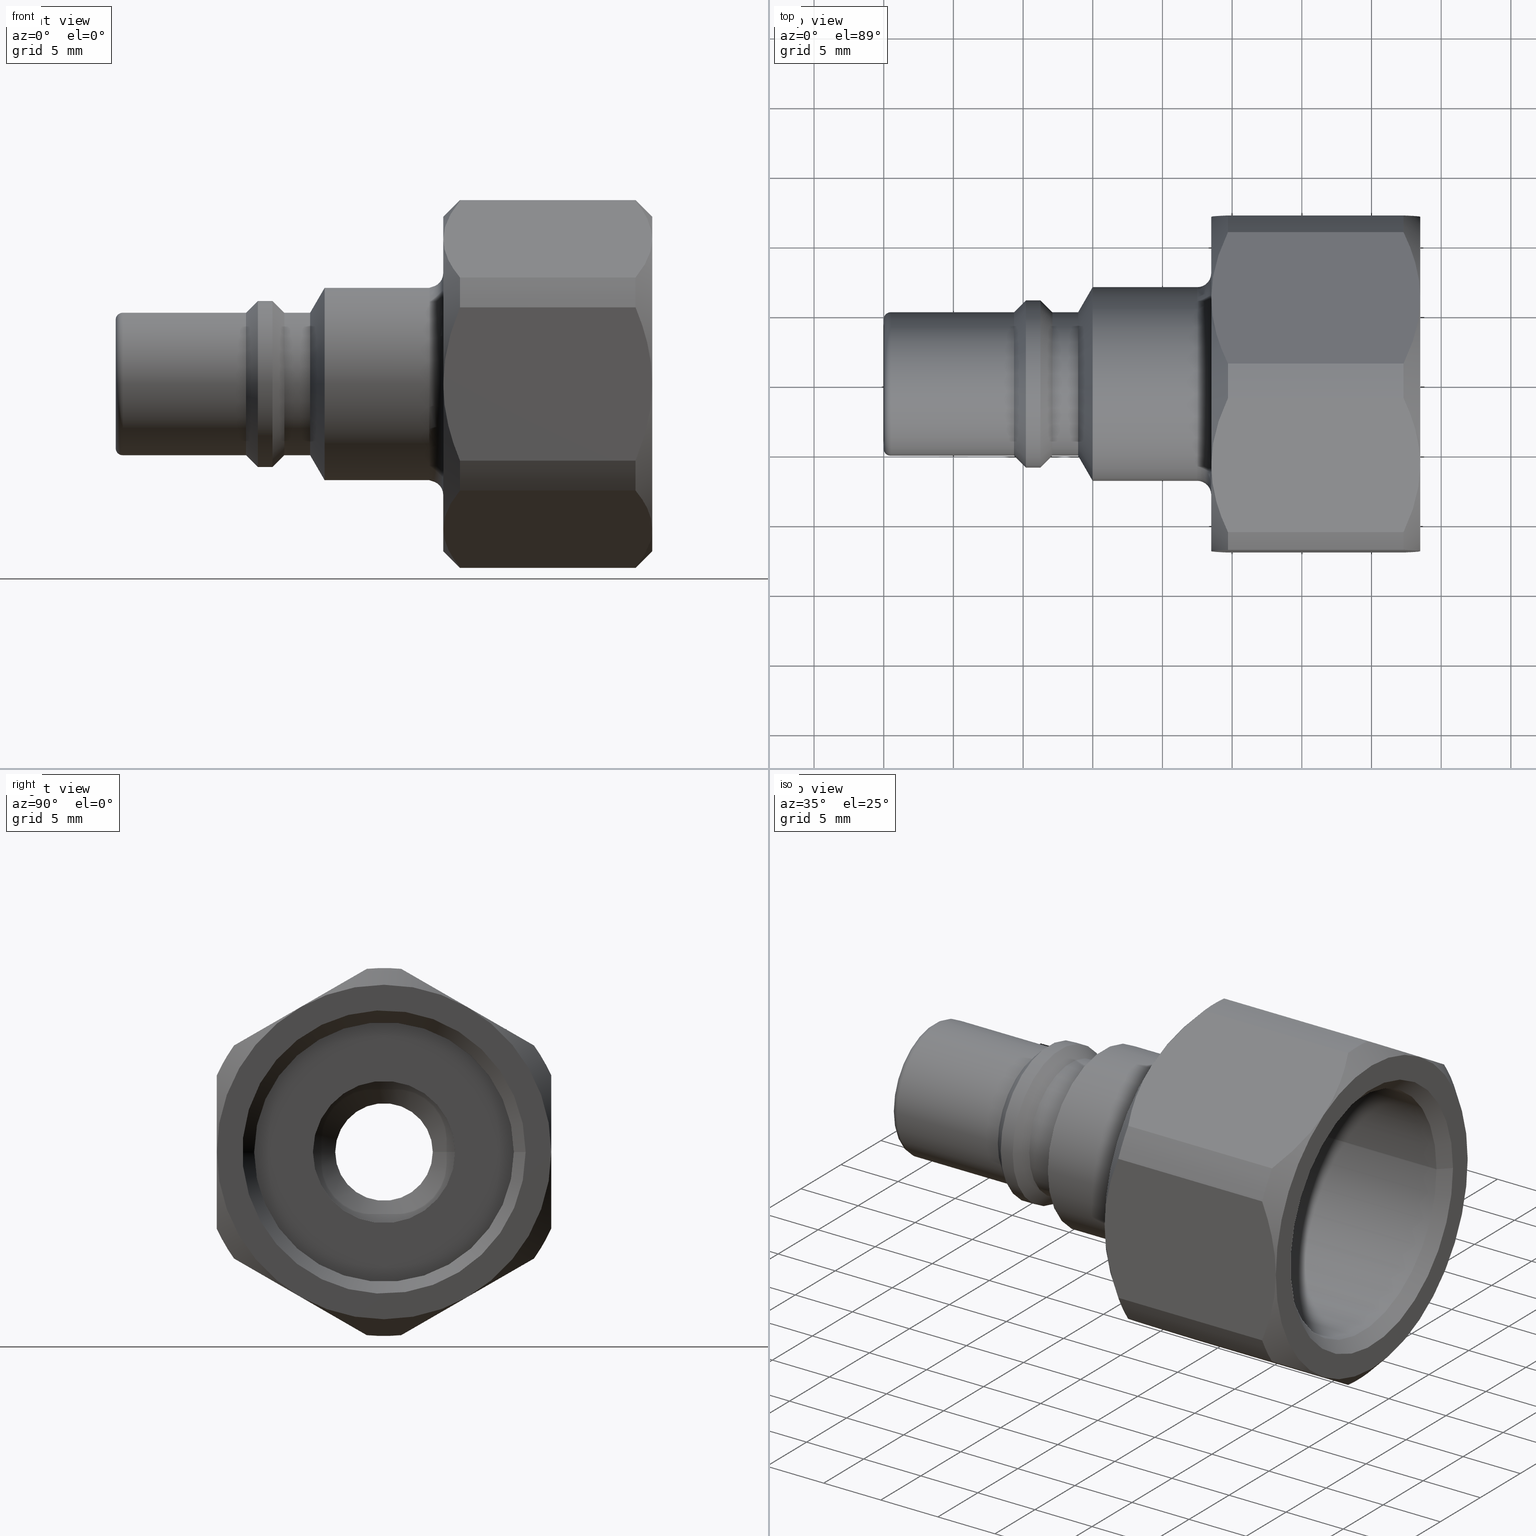
[diagram: canonical four-view strip — front | top / right | iso, engineering-drawing reading convention]
A machine part, canonical four-view strip (front | top / right | iso — engineering-drawing reading convention). The complete STEP part file that produces these views, byte-faithful:
ISO-10303-21;
HEADER;
/****************************************************************
 * Generated by software with PDE/Lib inside                    *
 * PDElib Version v51a, created Thu 01/14/2010                  *
 * ITI Transcendata (http://www.transcendata.com/)              *
 ****************************************************************/
FILE_DESCRIPTION((''),'2;1');
FILE_NAME('J:\\3D Zeichnungen_step\\Serie 48\\48sfiw21dxx.stp','2013-04-10T10:29:20',('IA176480'),(''),'Autodesk Inventor 2011','Autodesk Inventor 2011','');
FILE_SCHEMA(('AUTOMOTIVE_DESIGN { 1 0 10303 214 1 1 1 1 }'));
ENDSEC;
DATA;
#5=APPLICATION_CONTEXT('automotive design');
#6=APPLICATION_PROTOCOL_DEFINITION('International Standard','automotive_design',2001,#5);
#7=PRODUCT_CONTEXT('',#5,'mechanical');
#8=PRODUCT('D106298','D106298',$,(#7));
#9=PRODUCT_RELATED_PRODUCT_CATEGORY('part',$,(#8));
#10=PRODUCT_DEFINITION_FORMATION('',$,#8);
#11=PRODUCT_DEFINITION_CONTEXT('part definition',#5,'design');
#12=PRODUCT_DEFINITION('',$,#10,#11);
#18=(NAMED_UNIT(*)PLANE_ANGLE_UNIT()SI_UNIT($,.RADIAN.));
#19=DIMENSIONAL_EXPONENTS(0.0,0.0,0.0,0.0,0.0,0.0,0.0);
#20=PLANE_ANGLE_MEASURE_WITH_UNIT(PLANE_ANGLE_MEASURE(0.017453292500000),#18);
#24=(CONVERSION_BASED_UNIT('DEGREE',#20)NAMED_UNIT(#19)PLANE_ANGLE_UNIT());
#28=(NAMED_UNIT(*)SI_UNIT($,.STERADIAN.)SOLID_ANGLE_UNIT());
#32=(LENGTH_UNIT()NAMED_UNIT(*)SI_UNIT(.MILLI.,.METRE.));
#34=UNCERTAINTY_MEASURE_WITH_UNIT(LENGTH_MEASURE(0.010000000000000),#32,'DISTANCE_ACCURACY_VALUE','');
#36=(GEOMETRIC_REPRESENTATION_CONTEXT(3)GLOBAL_UNCERTAINTY_ASSIGNED_CONTEXT((#34))GLOBAL_UNIT_ASSIGNED_CONTEXT((#24,#28,#32))REPRESENTATION_CONTEXT('None','None'));
#37=AXIS2_PLACEMENT_3D('',#38,#39,#40);
#38=CARTESIAN_POINT('',(0.0,0.0,0.0));
#39=DIRECTION('',(0.0,0.0,1.0));
#40=DIRECTION('',(1.0,0.0,0.0));
#41=SHAPE_REPRESENTATION('',(#37),#36);
#42=PRODUCT_DEFINITION_SHAPE('','',#12);
#43=SHAPE_DEFINITION_REPRESENTATION(#42,#41);
#49=(NAMED_UNIT(*)PLANE_ANGLE_UNIT()SI_UNIT($,.RADIAN.));
#50=DIMENSIONAL_EXPONENTS(0.0,0.0,0.0,0.0,0.0,0.0,0.0);
#51=PLANE_ANGLE_MEASURE_WITH_UNIT(PLANE_ANGLE_MEASURE(0.017453292500000),#49);
#55=(CONVERSION_BASED_UNIT('DEGREE',#51)NAMED_UNIT(#50)PLANE_ANGLE_UNIT());
#59=(NAMED_UNIT(*)SI_UNIT($,.STERADIAN.)SOLID_ANGLE_UNIT());
#63=(LENGTH_UNIT()NAMED_UNIT(*)SI_UNIT(.MILLI.,.METRE.));
#65=UNCERTAINTY_MEASURE_WITH_UNIT(LENGTH_MEASURE(0.000001000000000),#63,'DISTANCE_ACCURACY_VALUE','');
#67=(GEOMETRIC_REPRESENTATION_CONTEXT(3)GLOBAL_UNCERTAINTY_ASSIGNED_CONTEXT((#65))GLOBAL_UNIT_ASSIGNED_CONTEXT((#55,#59,#63))REPRESENTATION_CONTEXT('','3D'));
#68=CARTESIAN_POINT('',(42.885558294457141,5.999999999999995,-10.392304845413271));
#69=DIRECTION('',(0.0,-0.499999999999999,0.866025403784439));
#70=DIRECTION('',(0.0,-0.866025403784439,-0.499999999999999));
#71=AXIS2_PLACEMENT_3D('',#68,#69,#70);
#72=PLANE('',#71);
#73=CARTESIAN_POINT('',(24.699999999999996,10.762352359916250,-7.642759428439780));
#74=VERTEX_POINT('',#73);
#75=CARTESIAN_POINT('',(23.499999999999996,5.999999999999993,-10.392304845413275));
#76=VERTEX_POINT('',#75);
#77=CARTESIAN_POINT('',(24.699999999999996,10.762352359916246,-7.642759428439783));
#78=CARTESIAN_POINT('',(23.500000000000007,8.267786838055343,-9.082997503997328));
#79=CARTESIAN_POINT('',(23.500000000000007,5.999999999999992,-10.392304845413275));
#87=(BOUNDED_CURVE()B_SPLINE_CURVE(2,(#77,#78,#79),.UNSPECIFIED.,.F.,.U.)B_SPLINE_CURVE_WITH_KNOTS((3,3),(0.0,0.565685500897022),.UNSPECIFIED.)CURVE()GEOMETRIC_REPRESENTATION_ITEM()RATIONAL_B_SPLINE_CURVE((1.0,1.024695076595956,1.0))REPRESENTATION_ITEM(''));
#88=EDGE_CURVE('',#74,#76,#87,.T.);
#89=ORIENTED_EDGE('',*,*,#88,.F.);
#90=CARTESIAN_POINT('',(37.299999999999990,10.762352359916250,-7.642759428439780));
#91=VERTEX_POINT('',#90);
#92=CARTESIAN_POINT('',(37.299999999999990,10.762352359916250,-7.642759428439780));
#93=DIRECTION('',(-1.0,0.0,0.0));
#94=VECTOR('',#93,12.599999999999994);
#95=LINE('',#92,#94);
#96=EDGE_CURVE('',#91,#74,#95,.T.);
#97=ORIENTED_EDGE('',*,*,#96,.F.);
#98=CARTESIAN_POINT('',(38.500000000000000,5.999999999999993,-10.392304845413275));
#99=VERTEX_POINT('',#98);
#100=CARTESIAN_POINT('',(38.499999999999986,5.999999999999996,-10.392304845413275));
#101=CARTESIAN_POINT('',(38.499999999999986,8.267786838055365,-9.082997503997317));
#102=CARTESIAN_POINT('',(37.299999999999990,10.762352359916257,-7.642759428439775));
#110=(BOUNDED_CURVE()B_SPLINE_CURVE(2,(#100,#101,#102),.UNSPECIFIED.,.F.,.U.)B_SPLINE_CURVE_WITH_KNOTS((3,3),(0.565685500897024,1.131371001794048),.UNSPECIFIED.)CURVE()GEOMETRIC_REPRESENTATION_ITEM()RATIONAL_B_SPLINE_CURVE((1.0,1.024695076595957,1.0))REPRESENTATION_ITEM(''));
#111=EDGE_CURVE('',#99,#91,#110,.T.);
#112=ORIENTED_EDGE('',*,*,#111,.F.);
#113=CARTESIAN_POINT('',(37.299999999999990,1.237647640083738,-13.141850262386768));
#114=VERTEX_POINT('',#113);
#115=CARTESIAN_POINT('',(37.299999999999990,1.237647640083732,-13.141850262386773));
#116=CARTESIAN_POINT('',(38.499999999999986,3.732213161944625,-11.701612186829230));
#117=CARTESIAN_POINT('',(38.499999999999986,5.999999999999996,-10.392304845413275));
#125=(BOUNDED_CURVE()B_SPLINE_CURVE(2,(#115,#116,#117),.UNSPECIFIED.,.F.,.U.)B_SPLINE_CURVE_WITH_KNOTS((3,3),(0.0,0.565685500897024),.UNSPECIFIED.)CURVE()GEOMETRIC_REPRESENTATION_ITEM()RATIONAL_B_SPLINE_CURVE((1.0,1.024695076595927,1.0))REPRESENTATION_ITEM(''));
#126=EDGE_CURVE('',#114,#99,#125,.T.);
#127=ORIENTED_EDGE('',*,*,#126,.F.);
#128=CARTESIAN_POINT('',(24.699999999999996,1.237647640083738,-13.141850262386768));
#129=VERTEX_POINT('',#128);
#130=CARTESIAN_POINT('',(24.699999999999996,1.237647640083738,-13.141850262386768));
#131=DIRECTION('',(1.0,0.0,0.0));
#132=VECTOR('',#131,12.599999999999994);
#133=LINE('',#130,#132);
#134=EDGE_CURVE('',#129,#114,#133,.T.);
#135=ORIENTED_EDGE('',*,*,#134,.F.);
#136=CARTESIAN_POINT('',(23.500000000000007,5.999999999999992,-10.392304845413275));
#137=CARTESIAN_POINT('',(23.500000000000007,3.732213161944642,-11.701612186829218));
#138=CARTESIAN_POINT('',(24.699999999999996,1.237647640083744,-13.141850262386765));
#146=(BOUNDED_CURVE()B_SPLINE_CURVE(2,(#136,#137,#138),.UNSPECIFIED.,.F.,.U.)B_SPLINE_CURVE_WITH_KNOTS((3,3),(0.565685500897022,1.131371001794045),.UNSPECIFIED.)CURVE()GEOMETRIC_REPRESENTATION_ITEM()RATIONAL_B_SPLINE_CURVE((1.0,1.024695076595959,1.0))REPRESENTATION_ITEM(''));
#147=EDGE_CURVE('',#76,#129,#146,.T.);
#148=ORIENTED_EDGE('',*,*,#147,.F.);
#149=EDGE_LOOP('',(#89,#97,#112,#127,#135,#148));
#150=FACE_OUTER_BOUND('',#149,.T.);
#151=ADVANCED_FACE('',(#150),#72,.F.);
#152=CARTESIAN_POINT('',(42.885558294457141,-6.000000000000006,-10.392304845413262));
#153=DIRECTION('',(0.0,0.500000000000000,0.866025403784438));
#154=DIRECTION('',(0.0,-0.866025403784438,0.500000000000000));
#155=AXIS2_PLACEMENT_3D('',#152,#153,#154);
#156=PLANE('',#155);
#157=CARTESIAN_POINT('',(24.699999999999996,-1.237647640083747,-13.141850262386768));
#158=VERTEX_POINT('',#157);
#159=CARTESIAN_POINT('',(23.499999999999996,-6.000000000000006,-10.392304845413262));
#160=VERTEX_POINT('',#159);
#161=CARTESIAN_POINT('',(24.699999999999996,-1.237647640083750,-13.141850262386765));
#162=CARTESIAN_POINT('',(23.500000000000007,-3.732213161944644,-11.701612186829218));
#163=CARTESIAN_POINT('',(23.500000000000000,-6.000000000000006,-10.392304845413262));
#171=(BOUNDED_CURVE()B_SPLINE_CURVE(2,(#161,#162,#163),.UNSPECIFIED.,.F.,.U.)B_SPLINE_CURVE_WITH_KNOTS((3,3),(0.0,0.565685500897023),.UNSPECIFIED.)CURVE()GEOMETRIC_REPRESENTATION_ITEM()RATIONAL_B_SPLINE_CURVE((1.0,1.024695076595988,1.0))REPRESENTATION_ITEM(''));
#172=EDGE_CURVE('',#158,#160,#171,.T.);
#173=ORIENTED_EDGE('',*,*,#172,.F.);
#174=CARTESIAN_POINT('',(37.299999999999990,-1.237647640083747,-13.141850262386768));
#175=VERTEX_POINT('',#174);
#176=CARTESIAN_POINT('',(37.299999999999990,-1.237647640083747,-13.141850262386768));
#177=DIRECTION('',(-1.0,0.0,0.0));
#178=VECTOR('',#177,12.599999999999994);
#179=LINE('',#176,#178);
#180=EDGE_CURVE('',#175,#158,#179,.T.);
#181=ORIENTED_EDGE('',*,*,#180,.F.);
#182=CARTESIAN_POINT('',(38.500000000000000,-6.000000000000006,-10.392304845413262));
#183=VERTEX_POINT('',#182);
#184=CARTESIAN_POINT('',(38.499999999999993,-6.000000000000005,-10.392304845413262));
#185=CARTESIAN_POINT('',(38.499999999999993,-3.732213161944636,-11.701612186829223));
#186=CARTESIAN_POINT('',(37.299999999999990,-1.237647640083741,-13.141850262386772));
#194=(BOUNDED_CURVE()B_SPLINE_CURVE(2,(#184,#185,#186),.UNSPECIFIED.,.F.,.U.)B_SPLINE_CURVE_WITH_KNOTS((3,3),(0.565685500897025,1.131371001794049),.UNSPECIFIED.)CURVE()GEOMETRIC_REPRESENTATION_ITEM()RATIONAL_B_SPLINE_CURVE((1.0,1.024695076595971,1.0))REPRESENTATION_ITEM(''));
#195=EDGE_CURVE('',#183,#175,#194,.T.);
#196=ORIENTED_EDGE('',*,*,#195,.F.);
#197=CARTESIAN_POINT('',(37.299999999999990,-10.762352359916267,-7.642759428439758));
#198=VERTEX_POINT('',#197);
#199=CARTESIAN_POINT('',(37.299999999999990,-10.762352359916271,-7.642759428439754));
#200=CARTESIAN_POINT('',(38.499999999999993,-8.267786838055375,-9.082997503997303));
#201=CARTESIAN_POINT('',(38.499999999999993,-6.000000000000005,-10.392304845413262));
#209=(BOUNDED_CURVE()B_SPLINE_CURVE(2,(#199,#200,#201),.UNSPECIFIED.,.F.,.U.)B_SPLINE_CURVE_WITH_KNOTS((3,3),(0.0,0.565685500897025),.UNSPECIFIED.)CURVE()GEOMETRIC_REPRESENTATION_ITEM()RATIONAL_B_SPLINE_CURVE((1.0,1.024695076595972,1.0))REPRESENTATION_ITEM(''));
#210=EDGE_CURVE('',#198,#183,#209,.T.);
#211=ORIENTED_EDGE('',*,*,#210,.F.);
#212=CARTESIAN_POINT('',(24.699999999999996,-10.762352359916267,-7.642759428439758));
#213=VERTEX_POINT('',#212);
#214=CARTESIAN_POINT('',(24.699999999999996,-10.762352359916267,-7.642759428439758));
#215=DIRECTION('',(1.0,0.0,0.0));
#216=VECTOR('',#215,12.599999999999994);
#217=LINE('',#214,#216);
#218=EDGE_CURVE('',#213,#198,#217,.T.);
#219=ORIENTED_EDGE('',*,*,#218,.F.);
#220=CARTESIAN_POINT('',(23.500000000000000,-6.000000000000006,-10.392304845413262));
#221=CARTESIAN_POINT('',(23.499999999999996,-8.267786838055359,-9.082997503997312));
#222=CARTESIAN_POINT('',(24.699999999999996,-10.762352359916260,-7.642759428439760));
#230=(BOUNDED_CURVE()B_SPLINE_CURVE(2,(#220,#221,#222),.UNSPECIFIED.,.F.,.U.)B_SPLINE_CURVE_WITH_KNOTS((3,3),(0.565685500897023,1.131371001794047),.UNSPECIFIED.)CURVE()GEOMETRIC_REPRESENTATION_ITEM()RATIONAL_B_SPLINE_CURVE((1.0,1.024695076595972,1.0))REPRESENTATION_ITEM(''));
#231=EDGE_CURVE('',#160,#213,#230,.T.);
#232=ORIENTED_EDGE('',*,*,#231,.F.);
#233=EDGE_LOOP('',(#173,#181,#196,#211,#219,#232));
#234=FACE_OUTER_BOUND('',#233,.T.);
#235=ADVANCED_FACE('',(#234),#156,.F.);
#236=CARTESIAN_POINT('',(42.885558294457141,-12.000000000000002,1.110223E-015));
#237=DIRECTION('',(0.0,1.0,0.0));
#238=DIRECTION('',(0.0,0.0,1.0));
#239=AXIS2_PLACEMENT_3D('',#236,#237,#238);
#240=PLANE('',#239);
#241=CARTESIAN_POINT('',(24.699999999999996,-12.000000000000002,-5.499090833947004));
#242=VERTEX_POINT('',#241);
#243=CARTESIAN_POINT('',(23.499999999999996,-12.000000000000002,1.998401E-015));
#244=VERTEX_POINT('',#243);
#245=CARTESIAN_POINT('',(24.699999999999996,-12.000000000000002,-5.499090833947000));
#246=CARTESIAN_POINT('',(23.500000000000000,-12.000000000000002,-2.618614682831905));
#247=CARTESIAN_POINT('',(23.500000000000000,-12.000000000000002,1.998401E-015));
#255=(BOUNDED_CURVE()B_SPLINE_CURVE(2,(#245,#246,#247),.UNSPECIFIED.,.F.,.U.)B_SPLINE_CURVE_WITH_KNOTS((3,3),(0.0,0.565685500897023),.UNSPECIFIED.)CURVE()GEOMETRIC_REPRESENTATION_ITEM()RATIONAL_B_SPLINE_CURVE((1.0,1.024695076595973,1.0))REPRESENTATION_ITEM(''));
#256=EDGE_CURVE('',#242,#244,#255,.T.);
#257=ORIENTED_EDGE('',*,*,#256,.F.);
#258=CARTESIAN_POINT('',(37.299999999999990,-12.000000000000002,-5.499090833947004));
#259=VERTEX_POINT('',#258);
#260=CARTESIAN_POINT('',(37.299999999999990,-12.000000000000002,-5.499090833947004));
#261=DIRECTION('',(-1.0,0.0,0.0));
#262=VECTOR('',#261,12.599999999999994);
#263=LINE('',#260,#262);
#264=EDGE_CURVE('',#259,#242,#263,.T.);
#265=ORIENTED_EDGE('',*,*,#264,.F.);
#266=CARTESIAN_POINT('',(38.500000000000000,-12.000000000000002,1.998401E-015));
#267=VERTEX_POINT('',#266);
#268=CARTESIAN_POINT('',(38.499999999999993,-12.000000000000002,1.998401E-015));
#269=CARTESIAN_POINT('',(38.499999999999993,-12.000000000000002,-2.618614682831926));
#270=CARTESIAN_POINT('',(37.299999999999990,-12.000000000000002,-5.499090833947018));
#278=(BOUNDED_CURVE()B_SPLINE_CURVE(2,(#268,#269,#270),.UNSPECIFIED.,.F.,.U.)B_SPLINE_CURVE_WITH_KNOTS((3,3),(0.565685500897025,1.131371001794051),.UNSPECIFIED.)CURVE()GEOMETRIC_REPRESENTATION_ITEM()RATIONAL_B_SPLINE_CURVE((1.0,1.024695076595943,1.0))REPRESENTATION_ITEM(''));
#279=EDGE_CURVE('',#267,#259,#278,.T.);
#280=ORIENTED_EDGE('',*,*,#279,.F.);
#281=CARTESIAN_POINT('',(37.299999999999990,-12.000000000000002,5.499090833947008));
#282=VERTEX_POINT('',#281);
#283=CARTESIAN_POINT('',(37.299999999999990,-12.000000000000002,5.499090833947022));
#284=CARTESIAN_POINT('',(38.499999999999993,-12.000000000000002,2.618614682831931));
#285=CARTESIAN_POINT('',(38.499999999999993,-12.000000000000002,1.998401E-015));
#293=(BOUNDED_CURVE()B_SPLINE_CURVE(2,(#283,#284,#285),.UNSPECIFIED.,.F.,.U.)B_SPLINE_CURVE_WITH_KNOTS((3,3),(0.0,0.565685500897025),.UNSPECIFIED.)CURVE()GEOMETRIC_REPRESENTATION_ITEM()RATIONAL_B_SPLINE_CURVE((1.0,1.024695076595943,1.0))REPRESENTATION_ITEM(''));
#294=EDGE_CURVE('',#282,#267,#293,.T.);
#295=ORIENTED_EDGE('',*,*,#294,.F.);
#296=CARTESIAN_POINT('',(24.699999999999996,-12.000000000000002,5.499090833947008));
#297=VERTEX_POINT('',#296);
#298=CARTESIAN_POINT('',(24.699999999999996,-12.000000000000002,5.499090833947008));
#299=DIRECTION('',(1.0,0.0,0.0));
#300=VECTOR('',#299,12.599999999999994);
#301=LINE('',#298,#300);
#302=EDGE_CURVE('',#297,#282,#301,.T.);
#303=ORIENTED_EDGE('',*,*,#302,.F.);
#304=CARTESIAN_POINT('',(23.500000000000000,-12.000000000000002,1.998401E-015));
#305=CARTESIAN_POINT('',(23.500000000000000,-12.000000000000002,2.618614682831910));
#306=CARTESIAN_POINT('',(24.699999999999996,-12.000000000000002,5.499090833947005));
#314=(BOUNDED_CURVE()B_SPLINE_CURVE(2,(#304,#305,#306),.UNSPECIFIED.,.F.,.U.)B_SPLINE_CURVE_WITH_KNOTS((3,3),(0.565685500897023,1.131371001794047),.UNSPECIFIED.)CURVE()GEOMETRIC_REPRESENTATION_ITEM()RATIONAL_B_SPLINE_CURVE((1.0,1.024695076595973,1.0))REPRESENTATION_ITEM(''));
#315=EDGE_CURVE('',#244,#297,#314,.T.);
#316=ORIENTED_EDGE('',*,*,#315,.F.);
#317=EDGE_LOOP('',(#257,#265,#280,#295,#303,#316));
#318=FACE_OUTER_BOUND('',#317,.T.);
#319=ADVANCED_FACE('',(#318),#240,.F.);
#320=CARTESIAN_POINT('',(42.885558294457141,-5.999999999999998,10.392304845413268));
#321=DIRECTION('',(0.0,0.500000000000000,-0.866025403784439));
#322=DIRECTION('',(0.0,0.866025403784439,0.500000000000000));
#323=AXIS2_PLACEMENT_3D('',#320,#321,#322);
#324=PLANE('',#323);
#325=CARTESIAN_POINT('',(24.699999999999996,-10.762352359916260,7.642759428439765));
#326=VERTEX_POINT('',#325);
#327=CARTESIAN_POINT('',(23.499999999999996,-5.999999999999998,10.392304845413268));
#328=VERTEX_POINT('',#327);
#329=CARTESIAN_POINT('',(24.699999999999996,-10.762352359916257,7.642759428439768));
#330=CARTESIAN_POINT('',(23.500000000000000,-8.267786838055356,9.082997503997317));
#331=CARTESIAN_POINT('',(23.500000000000000,-5.999999999999997,10.392304845413268));
#339=(BOUNDED_CURVE()B_SPLINE_CURVE(2,(#329,#330,#331),.UNSPECIFIED.,.F.,.U.)B_SPLINE_CURVE_WITH_KNOTS((3,3),(0.0,0.565685500897023),.UNSPECIFIED.)CURVE()GEOMETRIC_REPRESENTATION_ITEM()RATIONAL_B_SPLINE_CURVE((1.0,1.024695076595941,1.0))REPRESENTATION_ITEM(''));
#340=EDGE_CURVE('',#326,#328,#339,.T.);
#341=ORIENTED_EDGE('',*,*,#340,.F.);
#342=CARTESIAN_POINT('',(37.299999999999990,-10.762352359916260,7.642759428439765));
#343=VERTEX_POINT('',#342);
#344=CARTESIAN_POINT('',(37.299999999999990,-10.762352359916260,7.642759428439765));
#345=DIRECTION('',(-1.0,0.0,0.0));
#346=VECTOR('',#345,12.599999999999994);
#347=LINE('',#344,#346);
#348=EDGE_CURVE('',#343,#326,#347,.T.);
#349=ORIENTED_EDGE('',*,*,#348,.F.);
#350=CARTESIAN_POINT('',(38.500000000000000,-5.999999999999998,10.392304845413268));
#351=VERTEX_POINT('',#350);
#352=CARTESIAN_POINT('',(38.499999999999993,-5.999999999999998,10.392304845413268));
#353=CARTESIAN_POINT('',(38.499999999999993,-8.267786838055368,9.082997503997310));
#354=CARTESIAN_POINT('',(37.299999999999990,-10.762352359916266,7.642759428439763));
#362=(BOUNDED_CURVE()B_SPLINE_CURVE(2,(#352,#353,#354),.UNSPECIFIED.,.F.,.U.)B_SPLINE_CURVE_WITH_KNOTS((3,3),(0.565685500897025,1.131371001794049),.UNSPECIFIED.)CURVE()GEOMETRIC_REPRESENTATION_ITEM()RATIONAL_B_SPLINE_CURVE((1.0,1.024695076595942,1.0))REPRESENTATION_ITEM(''));
#363=EDGE_CURVE('',#351,#343,#362,.T.);
#364=ORIENTED_EDGE('',*,*,#363,.F.);
#365=CARTESIAN_POINT('',(37.299999999999990,-1.237647640083737,13.141850262386770));
#366=VERTEX_POINT('',#365);
#367=CARTESIAN_POINT('',(37.299999999999990,-1.237647640083731,13.141850262386772));
#368=CARTESIAN_POINT('',(38.499999999999993,-3.732213161944629,11.701612186829225));
#369=CARTESIAN_POINT('',(38.499999999999993,-5.999999999999998,10.392304845413268));
#377=(BOUNDED_CURVE()B_SPLINE_CURVE(2,(#367,#368,#369),.UNSPECIFIED.,.F.,.U.)B_SPLINE_CURVE_WITH_KNOTS((3,3),(0.0,0.565685500897025),.UNSPECIFIED.)CURVE()GEOMETRIC_REPRESENTATION_ITEM()RATIONAL_B_SPLINE_CURVE((1.0,1.024695076595943,1.0))REPRESENTATION_ITEM(''));
#378=EDGE_CURVE('',#366,#351,#377,.T.);
#379=ORIENTED_EDGE('',*,*,#378,.F.);
#380=CARTESIAN_POINT('',(24.699999999999996,-1.237647640083737,13.141850262386770));
#381=VERTEX_POINT('',#380);
#382=CARTESIAN_POINT('',(24.699999999999996,-1.237647640083737,13.141850262386770));
#383=DIRECTION('',(1.0,0.0,0.0));
#384=VECTOR('',#383,12.599999999999994);
#385=LINE('',#382,#384);
#386=EDGE_CURVE('',#381,#366,#385,.T.);
#387=ORIENTED_EDGE('',*,*,#386,.F.);
#388=CARTESIAN_POINT('',(23.500000000000000,-5.999999999999997,10.392304845413268));
#389=CARTESIAN_POINT('',(23.500000000000000,-3.732213161944634,11.701612186829220));
#390=CARTESIAN_POINT('',(24.699999999999996,-1.237647640083739,13.141850262386768));
#398=(BOUNDED_CURVE()B_SPLINE_CURVE(2,(#388,#389,#390),.UNSPECIFIED.,.F.,.U.)B_SPLINE_CURVE_WITH_KNOTS((3,3),(0.565685500897023,1.131371001794047),.UNSPECIFIED.)CURVE()GEOMETRIC_REPRESENTATION_ITEM()RATIONAL_B_SPLINE_CURVE((1.0,1.024695076595986,1.0))REPRESENTATION_ITEM(''));
#399=EDGE_CURVE('',#328,#381,#398,.T.);
#400=ORIENTED_EDGE('',*,*,#399,.F.);
#401=EDGE_LOOP('',(#341,#349,#364,#379,#387,#400));
#402=FACE_OUTER_BOUND('',#401,.T.);
#403=ADVANCED_FACE('',(#402),#324,.F.);
#404=CARTESIAN_POINT('',(42.885558294457141,6.000000000000002,10.392304845413264));
#405=DIRECTION('',(0.0,-0.500000000000000,-0.866025403784439));
#406=DIRECTION('',(0.0,0.866025403784439,-0.500000000000000));
#407=AXIS2_PLACEMENT_3D('',#404,#405,#406);
#408=PLANE('',#407);
#409=CARTESIAN_POINT('',(24.699999999999996,1.237647640083741,13.141850262386768));
#410=VERTEX_POINT('',#409);
#411=CARTESIAN_POINT('',(23.499999999999996,6.000000000000002,10.392304845413264));
#412=VERTEX_POINT('',#411);
#413=CARTESIAN_POINT('',(24.699999999999996,1.237647640083745,13.141850262386768));
#414=CARTESIAN_POINT('',(23.500000000000000,3.732213161944646,11.701612186829216));
#415=CARTESIAN_POINT('',(23.500000000000000,6.000000000000002,10.392304845413264));
#423=(BOUNDED_CURVE()B_SPLINE_CURVE(2,(#413,#414,#415),.UNSPECIFIED.,.F.,.U.)B_SPLINE_CURVE_WITH_KNOTS((3,3),(0.0,0.565685500897023),.UNSPECIFIED.)CURVE()GEOMETRIC_REPRESENTATION_ITEM()RATIONAL_B_SPLINE_CURVE((1.0,1.024695076595943,1.0))REPRESENTATION_ITEM(''));
#424=EDGE_CURVE('',#410,#412,#423,.T.);
#425=ORIENTED_EDGE('',*,*,#424,.F.);
#426=CARTESIAN_POINT('',(37.299999999999990,1.237647640083741,13.141850262386768));
#427=VERTEX_POINT('',#426);
#428=CARTESIAN_POINT('',(37.299999999999990,1.237647640083741,13.141850262386768));
#429=DIRECTION('',(-1.0,0.0,0.0));
#430=VECTOR('',#429,12.599999999999994);
#431=LINE('',#428,#430);
#432=EDGE_CURVE('',#427,#410,#431,.T.);
#433=ORIENTED_EDGE('',*,*,#432,.F.);
#434=CARTESIAN_POINT('',(38.500000000000000,6.000000000000002,10.392304845413264));
#435=VERTEX_POINT('',#434);
#436=CARTESIAN_POINT('',(38.499999999999993,6.000000000000002,10.392304845413264));
#437=CARTESIAN_POINT('',(38.499999999999993,3.732213161944633,11.701612186829223));
#438=CARTESIAN_POINT('',(37.299999999999990,1.237647640083736,13.141850262386772));
#446=(BOUNDED_CURVE()B_SPLINE_CURVE(2,(#436,#437,#438),.UNSPECIFIED.,.F.,.U.)B_SPLINE_CURVE_WITH_KNOTS((3,3),(0.565685500897025,1.131371001794049),.UNSPECIFIED.)CURVE()GEOMETRIC_REPRESENTATION_ITEM()RATIONAL_B_SPLINE_CURVE((1.0,1.024695076595943,1.0))REPRESENTATION_ITEM(''));
#447=EDGE_CURVE('',#435,#427,#446,.T.);
#448=ORIENTED_EDGE('',*,*,#447,.F.);
#449=CARTESIAN_POINT('',(37.299999999999990,10.762352359916264,7.642759428439762));
#450=VERTEX_POINT('',#449);
#451=CARTESIAN_POINT('',(37.299999999999990,10.762352359916269,7.642759428439758));
#452=CARTESIAN_POINT('',(38.499999999999993,8.267786838055374,9.082997503997307));
#453=CARTESIAN_POINT('',(38.499999999999993,6.000000000000002,10.392304845413264));
#461=(BOUNDED_CURVE()B_SPLINE_CURVE(2,(#451,#452,#453),.UNSPECIFIED.,.F.,.U.)B_SPLINE_CURVE_WITH_KNOTS((3,3),(0.0,0.565685500897025),.UNSPECIFIED.)CURVE()GEOMETRIC_REPRESENTATION_ITEM()RATIONAL_B_SPLINE_CURVE((1.0,1.024695076595942,1.0))REPRESENTATION_ITEM(''));
#462=EDGE_CURVE('',#450,#435,#461,.T.);
#463=ORIENTED_EDGE('',*,*,#462,.F.);
#464=CARTESIAN_POINT('',(24.699999999999996,10.762352359916264,7.642759428439762));
#465=VERTEX_POINT('',#464);
#466=CARTESIAN_POINT('',(24.699999999999996,10.762352359916264,7.642759428439762));
#467=DIRECTION('',(1.0,0.0,0.0));
#468=VECTOR('',#467,12.599999999999994);
#469=LINE('',#466,#468);
#470=EDGE_CURVE('',#465,#450,#469,.T.);
#471=ORIENTED_EDGE('',*,*,#470,.F.);
#472=CARTESIAN_POINT('',(23.500000000000000,6.000000000000002,10.392304845413264));
#473=CARTESIAN_POINT('',(23.500000000000000,8.267786838055358,9.082997503997314));
#474=CARTESIAN_POINT('',(24.699999999999996,10.762352359916260,7.642759428439763));
#482=(BOUNDED_CURVE()B_SPLINE_CURVE(2,(#472,#473,#474),.UNSPECIFIED.,.F.,.U.)B_SPLINE_CURVE_WITH_KNOTS((3,3),(0.565685500897023,1.131371001794047),.UNSPECIFIED.)CURVE()GEOMETRIC_REPRESENTATION_ITEM()RATIONAL_B_SPLINE_CURVE((1.0,1.024695076595975,1.0))REPRESENTATION_ITEM(''));
#483=EDGE_CURVE('',#412,#465,#482,.T.);
#484=ORIENTED_EDGE('',*,*,#483,.F.);
#485=EDGE_LOOP('',(#425,#433,#448,#463,#471,#484));
#486=FACE_OUTER_BOUND('',#485,.T.);
#487=ADVANCED_FACE('',(#486),#408,.F.);
#488=CARTESIAN_POINT('',(37.899999999999999,0.0,0.0));
#489=DIRECTION('',(-1.0,0.0,0.0));
#490=DIRECTION('',(0.0,1.0,0.0));
#491=AXIS2_PLACEMENT_3D('',#488,#489,#490);
#492=CONICAL_SURFACE('',#491,12.600000000000001,44.999999999999950);
#493=ORIENTED_EDGE('',*,*,#462,.T.);
#494=CARTESIAN_POINT('',(38.500000000000000,12.000000000000002,0.0));
#495=VERTEX_POINT('',#494);
#496=CARTESIAN_POINT('',(38.500000000000000,0.0,0.0));
#497=DIRECTION('',(1.0,0.0,0.0));
#498=DIRECTION('',(0.0,1.0,0.0));
#499=AXIS2_PLACEMENT_3D('',#496,#497,#498);
#500=CIRCLE('',#499,12.000000000000002);
#501=EDGE_CURVE('',#495,#435,#500,.T.);
#502=ORIENTED_EDGE('',*,*,#501,.F.);
#503=CARTESIAN_POINT('',(37.299999999999990,12.000000000000002,5.499090833947006));
#504=VERTEX_POINT('',#503);
#505=CARTESIAN_POINT('',(38.499999999999993,12.000000000000002,0.0));
#506=CARTESIAN_POINT('',(38.499999999999993,12.000000000000002,2.618614682831941));
#507=CARTESIAN_POINT('',(37.299999999999997,12.000000000000002,5.499090833947021));
#515=(BOUNDED_CURVE()B_SPLINE_CURVE(2,(#505,#506,#507),.UNSPECIFIED.,.F.,.U.)B_SPLINE_CURVE_WITH_KNOTS((3,3),(0.565685500897025,1.131371001794050),.UNSPECIFIED.)CURVE()GEOMETRIC_REPRESENTATION_ITEM()RATIONAL_B_SPLINE_CURVE((1.0,1.024695076595943,1.0))REPRESENTATION_ITEM(''));
#516=EDGE_CURVE('',#495,#504,#515,.T.);
#517=ORIENTED_EDGE('',*,*,#516,.T.);
#518=CARTESIAN_POINT('',(37.299999999999997,0.0,0.0));
#519=DIRECTION('',(1.0,0.0,0.0));
#520=DIRECTION('',(0.0,1.0,0.0));
#521=AXIS2_PLACEMENT_3D('',#518,#519,#520);
#522=CIRCLE('',#521,13.200000000000001);
#523=EDGE_CURVE('',#504,#450,#522,.T.);
#524=ORIENTED_EDGE('',*,*,#523,.T.);
#525=EDGE_LOOP('',(#493,#502,#517,#524));
#526=FACE_OUTER_BOUND('',#525,.T.);
#527=ADVANCED_FACE('',(#526),#492,.T.);
#528=CARTESIAN_POINT('',(37.899999999999999,0.0,0.0));
#529=DIRECTION('',(-1.0,0.0,0.0));
#530=DIRECTION('',(0.0,1.0,0.0));
#531=AXIS2_PLACEMENT_3D('',#528,#529,#530);
#532=CONICAL_SURFACE('',#531,12.600000000000001,44.999999999999950);
#533=ORIENTED_EDGE('',*,*,#378,.T.);
#534=CARTESIAN_POINT('',(38.500000000000000,0.0,0.0));
#535=DIRECTION('',(1.0,0.0,0.0));
#536=DIRECTION('',(0.0,1.0,0.0));
#537=AXIS2_PLACEMENT_3D('',#534,#535,#536);
#538=CIRCLE('',#537,12.000000000000002);
#539=EDGE_CURVE('',#435,#351,#538,.T.);
#540=ORIENTED_EDGE('',*,*,#539,.F.);
#541=ORIENTED_EDGE('',*,*,#447,.T.);
#542=CARTESIAN_POINT('',(37.299999999999997,0.0,0.0));
#543=DIRECTION('',(1.0,0.0,0.0));
#544=DIRECTION('',(0.0,1.0,0.0));
#545=AXIS2_PLACEMENT_3D('',#542,#543,#544);
#546=CIRCLE('',#545,13.200000000000001);
#547=EDGE_CURVE('',#427,#366,#546,.T.);
#548=ORIENTED_EDGE('',*,*,#547,.T.);
#549=EDGE_LOOP('',(#533,#540,#541,#548));
#550=FACE_OUTER_BOUND('',#549,.T.);
#551=ADVANCED_FACE('',(#550),#532,.T.);
#552=CARTESIAN_POINT('',(37.899999999999999,0.0,0.0));
#553=DIRECTION('',(-1.0,0.0,0.0));
#554=DIRECTION('',(0.0,1.0,0.0));
#555=AXIS2_PLACEMENT_3D('',#552,#553,#554);
#556=CONICAL_SURFACE('',#555,12.600000000000001,44.999999999999950);
#557=ORIENTED_EDGE('',*,*,#294,.T.);
#558=CARTESIAN_POINT('',(38.500000000000000,0.0,0.0));
#559=DIRECTION('',(1.0,0.0,0.0));
#560=DIRECTION('',(0.0,1.0,0.0));
#561=AXIS2_PLACEMENT_3D('',#558,#559,#560);
#562=CIRCLE('',#561,12.000000000000002);
#563=EDGE_CURVE('',#351,#267,#562,.T.);
#564=ORIENTED_EDGE('',*,*,#563,.F.);
#565=ORIENTED_EDGE('',*,*,#363,.T.);
#566=CARTESIAN_POINT('',(37.299999999999997,0.0,0.0));
#567=DIRECTION('',(1.0,0.0,0.0));
#568=DIRECTION('',(0.0,1.0,0.0));
#569=AXIS2_PLACEMENT_3D('',#566,#567,#568);
#570=CIRCLE('',#569,13.200000000000001);
#571=EDGE_CURVE('',#343,#282,#570,.T.);
#572=ORIENTED_EDGE('',*,*,#571,.T.);
#573=EDGE_LOOP('',(#557,#564,#565,#572));
#574=FACE_OUTER_BOUND('',#573,.T.);
#575=ADVANCED_FACE('',(#574),#556,.T.);
#576=CARTESIAN_POINT('',(37.899999999999999,0.0,0.0));
#577=DIRECTION('',(-1.0,0.0,0.0));
#578=DIRECTION('',(0.0,1.0,0.0));
#579=AXIS2_PLACEMENT_3D('',#576,#577,#578);
#580=CONICAL_SURFACE('',#579,12.600000000000001,44.999999999999950);
#581=ORIENTED_EDGE('',*,*,#210,.T.);
#582=CARTESIAN_POINT('',(38.500000000000000,0.0,0.0));
#583=DIRECTION('',(1.0,0.0,0.0));
#584=DIRECTION('',(0.0,1.0,0.0));
#585=AXIS2_PLACEMENT_3D('',#582,#583,#584);
#586=CIRCLE('',#585,12.000000000000002);
#587=EDGE_CURVE('',#267,#183,#586,.T.);
#588=ORIENTED_EDGE('',*,*,#587,.F.);
#589=ORIENTED_EDGE('',*,*,#279,.T.);
#590=CARTESIAN_POINT('',(37.299999999999997,0.0,0.0));
#591=DIRECTION('',(1.0,0.0,0.0));
#592=DIRECTION('',(0.0,1.0,0.0));
#593=AXIS2_PLACEMENT_3D('',#590,#591,#592);
#594=CIRCLE('',#593,13.200000000000001);
#595=EDGE_CURVE('',#259,#198,#594,.T.);
#596=ORIENTED_EDGE('',*,*,#595,.T.);
#597=EDGE_LOOP('',(#581,#588,#589,#596));
#598=FACE_OUTER_BOUND('',#597,.T.);
#599=ADVANCED_FACE('',(#598),#580,.T.);
#600=CARTESIAN_POINT('',(37.899999999999999,0.0,0.0));
#601=DIRECTION('',(-1.0,0.0,0.0));
#602=DIRECTION('',(0.0,1.0,0.0));
#603=AXIS2_PLACEMENT_3D('',#600,#601,#602);
#604=CONICAL_SURFACE('',#603,12.600000000000001,44.999999999999950);
#605=ORIENTED_EDGE('',*,*,#111,.T.);
#606=CARTESIAN_POINT('',(37.299999999999990,12.000000000000002,-5.499090833947006));
#607=VERTEX_POINT('',#606);
#608=CARTESIAN_POINT('',(37.299999999999997,0.0,0.0));
#609=DIRECTION('',(1.0,0.0,0.0));
#610=DIRECTION('',(0.0,1.0,0.0));
#611=AXIS2_PLACEMENT_3D('',#608,#609,#610);
#612=CIRCLE('',#611,13.200000000000001);
#613=EDGE_CURVE('',#91,#607,#612,.T.);
#614=ORIENTED_EDGE('',*,*,#613,.T.);
#615=CARTESIAN_POINT('',(37.299999999999997,12.000000000000002,-5.499090833947021));
#616=CARTESIAN_POINT('',(38.499999999999993,12.000000000000002,-2.618614682831941));
#617=CARTESIAN_POINT('',(38.499999999999993,12.000000000000002,0.0));
#625=(BOUNDED_CURVE()B_SPLINE_CURVE(2,(#615,#616,#617),.UNSPECIFIED.,.F.,.U.)B_SPLINE_CURVE_WITH_KNOTS((3,3),(0.0,0.565685500897025),.UNSPECIFIED.)CURVE()GEOMETRIC_REPRESENTATION_ITEM()RATIONAL_B_SPLINE_CURVE((1.0,1.024695076595943,1.0))REPRESENTATION_ITEM(''));
#626=EDGE_CURVE('',#607,#495,#625,.T.);
#627=ORIENTED_EDGE('',*,*,#626,.T.);
#628=CARTESIAN_POINT('',(38.500000000000000,0.0,0.0));
#629=DIRECTION('',(1.0,0.0,0.0));
#630=DIRECTION('',(0.0,1.0,0.0));
#631=AXIS2_PLACEMENT_3D('',#628,#629,#630);
#632=CIRCLE('',#631,12.000000000000002);
#633=EDGE_CURVE('',#99,#495,#632,.T.);
#634=ORIENTED_EDGE('',*,*,#633,.F.);
#635=EDGE_LOOP('',(#605,#614,#627,#634));
#636=FACE_OUTER_BOUND('',#635,.T.);
#637=ADVANCED_FACE('',(#636),#604,.T.);
#638=CARTESIAN_POINT('',(37.899999999999999,0.0,0.0));
#639=DIRECTION('',(-1.0,0.0,0.0));
#640=DIRECTION('',(0.0,1.0,0.0));
#641=AXIS2_PLACEMENT_3D('',#638,#639,#640);
#642=CONICAL_SURFACE('',#641,12.600000000000001,44.999999999999950);
#643=ORIENTED_EDGE('',*,*,#126,.T.);
#644=CARTESIAN_POINT('',(38.500000000000000,0.0,0.0));
#645=DIRECTION('',(1.0,0.0,0.0));
#646=DIRECTION('',(0.0,1.0,0.0));
#647=AXIS2_PLACEMENT_3D('',#644,#645,#646);
#648=CIRCLE('',#647,12.000000000000002);
#649=EDGE_CURVE('',#183,#99,#648,.T.);
#650=ORIENTED_EDGE('',*,*,#649,.F.);
#651=ORIENTED_EDGE('',*,*,#195,.T.);
#652=CARTESIAN_POINT('',(37.299999999999997,0.0,0.0));
#653=DIRECTION('',(1.0,0.0,0.0));
#654=DIRECTION('',(0.0,1.0,0.0));
#655=AXIS2_PLACEMENT_3D('',#652,#653,#654);
#656=CIRCLE('',#655,13.200000000000001);
#657=EDGE_CURVE('',#175,#114,#656,.T.);
#658=ORIENTED_EDGE('',*,*,#657,.T.);
#659=EDGE_LOOP('',(#643,#650,#651,#658));
#660=FACE_OUTER_BOUND('',#659,.T.);
#661=ADVANCED_FACE('',(#660),#642,.T.);
#662=CARTESIAN_POINT('',(30.999999999999996,0.0,0.0));
#663=DIRECTION('',(1.0,0.0,0.0));
#664=DIRECTION('',(0.0,1.0,0.0));
#665=AXIS2_PLACEMENT_3D('',#662,#663,#664);
#666=CYLINDRICAL_SURFACE('',#665,13.200000000000001);
#667=ORIENTED_EDGE('',*,*,#96,.T.);
#668=CARTESIAN_POINT('',(24.699999999999996,12.000000000000002,-5.499090833947006));
#669=VERTEX_POINT('',#668);
#670=CARTESIAN_POINT('',(24.699999999999996,0.0,0.0));
#671=DIRECTION('',(1.0,0.0,0.0));
#672=DIRECTION('',(0.0,1.0,0.0));
#673=AXIS2_PLACEMENT_3D('',#670,#671,#672);
#674=CIRCLE('',#673,13.200000000000001);
#675=EDGE_CURVE('',#74,#669,#674,.T.);
#676=ORIENTED_EDGE('',*,*,#675,.T.);
#677=CARTESIAN_POINT('',(24.699999999999996,12.000000000000002,-5.499090833947006));
#678=DIRECTION('',(1.0,0.0,0.0));
#679=VECTOR('',#678,12.599999999999994);
#680=LINE('',#677,#679);
#681=EDGE_CURVE('',#669,#607,#680,.T.);
#682=ORIENTED_EDGE('',*,*,#681,.T.);
#683=ORIENTED_EDGE('',*,*,#613,.F.);
#684=EDGE_LOOP('',(#667,#676,#682,#683));
#685=FACE_OUTER_BOUND('',#684,.T.);
#686=ADVANCED_FACE('',(#685),#666,.T.);
#687=CARTESIAN_POINT('',(30.999999999999996,0.0,0.0));
#688=DIRECTION('',(1.0,0.0,0.0));
#689=DIRECTION('',(0.0,1.0,0.0));
#690=AXIS2_PLACEMENT_3D('',#687,#688,#689);
#691=CYLINDRICAL_SURFACE('',#690,13.200000000000001);
#692=ORIENTED_EDGE('',*,*,#470,.T.);
#693=ORIENTED_EDGE('',*,*,#523,.F.);
#694=CARTESIAN_POINT('',(24.699999999999996,12.000000000000002,5.499090833947006));
#695=VERTEX_POINT('',#694);
#696=CARTESIAN_POINT('',(37.299999999999990,12.000000000000002,5.499090833947006));
#697=DIRECTION('',(-1.0,0.0,0.0));
#698=VECTOR('',#697,12.599999999999994);
#699=LINE('',#696,#698);
#700=EDGE_CURVE('',#504,#695,#699,.T.);
#701=ORIENTED_EDGE('',*,*,#700,.T.);
#702=CARTESIAN_POINT('',(24.699999999999996,0.0,0.0));
#703=DIRECTION('',(1.0,0.0,0.0));
#704=DIRECTION('',(0.0,1.0,0.0));
#705=AXIS2_PLACEMENT_3D('',#702,#703,#704);
#706=CIRCLE('',#705,13.200000000000001);
#707=EDGE_CURVE('',#695,#465,#706,.T.);
#708=ORIENTED_EDGE('',*,*,#707,.T.);
#709=EDGE_LOOP('',(#692,#693,#701,#708));
#710=FACE_OUTER_BOUND('',#709,.T.);
#711=ADVANCED_FACE('',(#710),#691,.T.);
#712=CARTESIAN_POINT('',(30.999999999999996,0.0,0.0));
#713=DIRECTION('',(1.0,0.0,0.0));
#714=DIRECTION('',(0.0,1.0,0.0));
#715=AXIS2_PLACEMENT_3D('',#712,#713,#714);
#716=CYLINDRICAL_SURFACE('',#715,13.200000000000001);
#717=ORIENTED_EDGE('',*,*,#386,.T.);
#718=ORIENTED_EDGE('',*,*,#547,.F.);
#719=ORIENTED_EDGE('',*,*,#432,.T.);
#720=CARTESIAN_POINT('',(24.699999999999996,0.0,0.0));
#721=DIRECTION('',(1.0,0.0,0.0));
#722=DIRECTION('',(0.0,1.0,0.0));
#723=AXIS2_PLACEMENT_3D('',#720,#721,#722);
#724=CIRCLE('',#723,13.200000000000001);
#725=EDGE_CURVE('',#410,#381,#724,.T.);
#726=ORIENTED_EDGE('',*,*,#725,.T.);
#727=EDGE_LOOP('',(#717,#718,#719,#726));
#728=FACE_OUTER_BOUND('',#727,.T.);
#729=ADVANCED_FACE('',(#728),#716,.T.);
#730=CARTESIAN_POINT('',(30.999999999999996,0.0,0.0));
#731=DIRECTION('',(1.0,0.0,0.0));
#732=DIRECTION('',(0.0,1.0,0.0));
#733=AXIS2_PLACEMENT_3D('',#730,#731,#732);
#734=CYLINDRICAL_SURFACE('',#733,13.200000000000001);
#735=ORIENTED_EDGE('',*,*,#302,.T.);
#736=ORIENTED_EDGE('',*,*,#571,.F.);
#737=ORIENTED_EDGE('',*,*,#348,.T.);
#738=CARTESIAN_POINT('',(24.699999999999996,0.0,0.0));
#739=DIRECTION('',(1.0,0.0,0.0));
#740=DIRECTION('',(0.0,1.0,0.0));
#741=AXIS2_PLACEMENT_3D('',#738,#739,#740);
#742=CIRCLE('',#741,13.200000000000001);
#743=EDGE_CURVE('',#326,#297,#742,.T.);
#744=ORIENTED_EDGE('',*,*,#743,.T.);
#745=EDGE_LOOP('',(#735,#736,#737,#744));
#746=FACE_OUTER_BOUND('',#745,.T.);
#747=ADVANCED_FACE('',(#746),#734,.T.);
#748=CARTESIAN_POINT('',(30.999999999999996,0.0,0.0));
#749=DIRECTION('',(1.0,0.0,0.0));
#750=DIRECTION('',(0.0,1.0,0.0));
#751=AXIS2_PLACEMENT_3D('',#748,#749,#750);
#752=CYLINDRICAL_SURFACE('',#751,13.200000000000001);
#753=ORIENTED_EDGE('',*,*,#218,.T.);
#754=ORIENTED_EDGE('',*,*,#595,.F.);
#755=ORIENTED_EDGE('',*,*,#264,.T.);
#756=CARTESIAN_POINT('',(24.699999999999996,0.0,0.0));
#757=DIRECTION('',(1.0,0.0,0.0));
#758=DIRECTION('',(0.0,1.0,0.0));
#759=AXIS2_PLACEMENT_3D('',#756,#757,#758);
#760=CIRCLE('',#759,13.200000000000001);
#761=EDGE_CURVE('',#242,#213,#760,.T.);
#762=ORIENTED_EDGE('',*,*,#761,.T.);
#763=EDGE_LOOP('',(#753,#754,#755,#762));
#764=FACE_OUTER_BOUND('',#763,.T.);
#765=ADVANCED_FACE('',(#764),#752,.T.);
#766=CARTESIAN_POINT('',(24.100000000000001,0.0,0.0));
#767=DIRECTION('',(1.0,0.0,0.0));
#768=DIRECTION('',(0.0,1.0,0.0));
#769=AXIS2_PLACEMENT_3D('',#766,#767,#768);
#770=CONICAL_SURFACE('',#769,12.600000000000001,45.000000000000057);
#771=ORIENTED_EDGE('',*,*,#88,.T.);
#772=CARTESIAN_POINT('',(23.500000000000000,12.000000000000002,0.0));
#773=VERTEX_POINT('',#772);
#774=CARTESIAN_POINT('',(23.500000000000000,0.0,0.0));
#775=DIRECTION('',(1.0,0.0,0.0));
#776=DIRECTION('',(0.0,1.0,0.0));
#777=AXIS2_PLACEMENT_3D('',#774,#775,#776);
#778=CIRCLE('',#777,12.000000000000002);
#779=EDGE_CURVE('',#76,#773,#778,.T.);
#780=ORIENTED_EDGE('',*,*,#779,.T.);
#781=CARTESIAN_POINT('',(23.500000000000000,12.000000000000002,0.0));
#782=CARTESIAN_POINT('',(23.500000000000000,12.000000000000002,-2.618614682831908));
#783=CARTESIAN_POINT('',(24.699999999999996,12.000000000000002,-5.499090833947003));
#791=(BOUNDED_CURVE()B_SPLINE_CURVE(2,(#781,#782,#783),.UNSPECIFIED.,.F.,.U.)B_SPLINE_CURVE_WITH_KNOTS((3,3),(0.565685500897023,1.131371001794047),.UNSPECIFIED.)CURVE()GEOMETRIC_REPRESENTATION_ITEM()RATIONAL_B_SPLINE_CURVE((1.0,1.024695076595972,1.0))REPRESENTATION_ITEM(''));
#792=EDGE_CURVE('',#773,#669,#791,.T.);
#793=ORIENTED_EDGE('',*,*,#792,.T.);
#794=ORIENTED_EDGE('',*,*,#675,.F.);
#795=EDGE_LOOP('',(#771,#780,#793,#794));
#796=FACE_OUTER_BOUND('',#795,.T.);
#797=ADVANCED_FACE('',(#796),#770,.T.);
#798=CARTESIAN_POINT('',(24.100000000000001,0.0,0.0));
#799=DIRECTION('',(1.0,0.0,0.0));
#800=DIRECTION('',(0.0,1.0,0.0));
#801=AXIS2_PLACEMENT_3D('',#798,#799,#800);
#802=CONICAL_SURFACE('',#801,12.600000000000001,45.000000000000057);
#803=ORIENTED_EDGE('',*,*,#483,.T.);
#804=ORIENTED_EDGE('',*,*,#707,.F.);
#805=CARTESIAN_POINT('',(24.699999999999996,12.000000000000002,5.499090833947003));
#806=CARTESIAN_POINT('',(23.500000000000000,12.000000000000002,2.618614682831908));
#807=CARTESIAN_POINT('',(23.500000000000000,12.000000000000002,0.0));
#815=(BOUNDED_CURVE()B_SPLINE_CURVE(2,(#805,#806,#807),.UNSPECIFIED.,.F.,.U.)B_SPLINE_CURVE_WITH_KNOTS((3,3),(0.0,0.565685500897023),.UNSPECIFIED.)CURVE()GEOMETRIC_REPRESENTATION_ITEM()RATIONAL_B_SPLINE_CURVE((1.0,1.024695076595972,1.0))REPRESENTATION_ITEM(''));
#816=EDGE_CURVE('',#695,#773,#815,.T.);
#817=ORIENTED_EDGE('',*,*,#816,.T.);
#818=CARTESIAN_POINT('',(23.500000000000000,0.0,0.0));
#819=DIRECTION('',(1.0,0.0,0.0));
#820=DIRECTION('',(0.0,1.0,0.0));
#821=AXIS2_PLACEMENT_3D('',#818,#819,#820);
#822=CIRCLE('',#821,12.000000000000002);
#823=EDGE_CURVE('',#773,#412,#822,.T.);
#824=ORIENTED_EDGE('',*,*,#823,.T.);
#825=EDGE_LOOP('',(#803,#804,#817,#824));
#826=FACE_OUTER_BOUND('',#825,.T.);
#827=ADVANCED_FACE('',(#826),#802,.T.);
#828=CARTESIAN_POINT('',(24.100000000000001,0.0,0.0));
#829=DIRECTION('',(1.0,0.0,0.0));
#830=DIRECTION('',(0.0,1.0,0.0));
#831=AXIS2_PLACEMENT_3D('',#828,#829,#830);
#832=CONICAL_SURFACE('',#831,12.600000000000001,45.000000000000057);
#833=ORIENTED_EDGE('',*,*,#399,.T.);
#834=ORIENTED_EDGE('',*,*,#725,.F.);
#835=ORIENTED_EDGE('',*,*,#424,.T.);
#836=CARTESIAN_POINT('',(23.500000000000000,0.0,0.0));
#837=DIRECTION('',(1.0,0.0,0.0));
#838=DIRECTION('',(0.0,1.0,0.0));
#839=AXIS2_PLACEMENT_3D('',#836,#837,#838);
#840=CIRCLE('',#839,12.000000000000002);
#841=EDGE_CURVE('',#412,#328,#840,.T.);
#842=ORIENTED_EDGE('',*,*,#841,.T.);
#843=EDGE_LOOP('',(#833,#834,#835,#842));
#844=FACE_OUTER_BOUND('',#843,.T.);
#845=ADVANCED_FACE('',(#844),#832,.T.);
#846=CARTESIAN_POINT('',(24.100000000000001,0.0,0.0));
#847=DIRECTION('',(1.0,0.0,0.0));
#848=DIRECTION('',(0.0,1.0,0.0));
#849=AXIS2_PLACEMENT_3D('',#846,#847,#848);
#850=CONICAL_SURFACE('',#849,12.600000000000001,45.000000000000057);
#851=ORIENTED_EDGE('',*,*,#315,.T.);
#852=ORIENTED_EDGE('',*,*,#743,.F.);
#853=ORIENTED_EDGE('',*,*,#340,.T.);
#854=CARTESIAN_POINT('',(23.500000000000000,0.0,0.0));
#855=DIRECTION('',(1.0,0.0,0.0));
#856=DIRECTION('',(0.0,1.0,0.0));
#857=AXIS2_PLACEMENT_3D('',#854,#855,#856);
#858=CIRCLE('',#857,12.000000000000002);
#859=EDGE_CURVE('',#328,#244,#858,.T.);
#860=ORIENTED_EDGE('',*,*,#859,.T.);
#861=EDGE_LOOP('',(#851,#852,#853,#860));
#862=FACE_OUTER_BOUND('',#861,.T.);
#863=ADVANCED_FACE('',(#862),#850,.T.);
#864=CARTESIAN_POINT('',(24.100000000000001,0.0,0.0));
#865=DIRECTION('',(1.0,0.0,0.0));
#866=DIRECTION('',(0.0,1.0,0.0));
#867=AXIS2_PLACEMENT_3D('',#864,#865,#866);
#868=CONICAL_SURFACE('',#867,12.600000000000001,45.000000000000057);
#869=ORIENTED_EDGE('',*,*,#231,.T.);
#870=ORIENTED_EDGE('',*,*,#761,.F.);
#871=ORIENTED_EDGE('',*,*,#256,.T.);
#872=CARTESIAN_POINT('',(23.500000000000000,0.0,0.0));
#873=DIRECTION('',(1.0,0.0,0.0));
#874=DIRECTION('',(0.0,1.0,0.0));
#875=AXIS2_PLACEMENT_3D('',#872,#873,#874);
#876=CIRCLE('',#875,12.000000000000002);
#877=EDGE_CURVE('',#244,#160,#876,.T.);
#878=ORIENTED_EDGE('',*,*,#877,.T.);
#879=EDGE_LOOP('',(#869,#870,#871,#878));
#880=FACE_OUTER_BOUND('',#879,.T.);
#881=ADVANCED_FACE('',(#880),#868,.T.);
#882=CARTESIAN_POINT('',(42.885558294457141,12.000000000000002,0.0));
#883=DIRECTION('',(0.0,-1.0,0.0));
#884=DIRECTION('',(0.0,0.0,-1.0));
#885=AXIS2_PLACEMENT_3D('',#882,#883,#884);
#886=PLANE('',#885);
#887=ORIENTED_EDGE('',*,*,#816,.F.);
#888=ORIENTED_EDGE('',*,*,#700,.F.);
#889=ORIENTED_EDGE('',*,*,#516,.F.);
#890=ORIENTED_EDGE('',*,*,#626,.F.);
#891=ORIENTED_EDGE('',*,*,#681,.F.);
#892=ORIENTED_EDGE('',*,*,#792,.F.);
#893=EDGE_LOOP('',(#887,#888,#889,#890,#891,#892));
#894=FACE_OUTER_BOUND('',#893,.T.);
#895=ADVANCED_FACE('',(#894),#886,.F.);
#896=CARTESIAN_POINT('',(22.500000000000000,0.0,0.0));
#897=DIRECTION('',(1.0,0.0,0.0));
#898=DIRECTION('',(0.0,0.0,-1.0));
#899=AXIS2_PLACEMENT_3D('',#896,#897,#898);
#900=TOROIDAL_SURFACE('',#899,7.950000000000000,1.0);
#901=CARTESIAN_POINT('',(22.500000000000000,6.950000000000001,0.0));
#902=VERTEX_POINT('',#901);
#903=CARTESIAN_POINT('',(22.500000000000000,0.0,0.0));
#904=DIRECTION('',(1.0,0.0,0.0));
#905=DIRECTION('',(0.0,-1.0,0.0));
#906=AXIS2_PLACEMENT_3D('',#903,#904,#905);
#907=CIRCLE('',#906,6.950000000000001);
#908=EDGE_CURVE('',#902,#902,#907,.T.);
#909=ORIENTED_EDGE('',*,*,#908,.T.);
#910=EDGE_LOOP('',(#909));
#911=FACE_OUTER_BOUND('',#910,.T.);
#912=CARTESIAN_POINT('',(23.500000000000000,7.950000000000000,-1.947188E-015));
#913=VERTEX_POINT('',#912);
#914=CARTESIAN_POINT('',(23.500000000000000,0.0,0.0));
#915=DIRECTION('',(-1.0,0.0,0.0));
#916=DIRECTION('',(0.0,-1.0,0.0));
#917=AXIS2_PLACEMENT_3D('',#914,#915,#916);
#918=CIRCLE('',#917,7.950000000000000);
#919=EDGE_CURVE('',#913,#913,#918,.T.);
#920=ORIENTED_EDGE('',*,*,#919,.T.);
#921=EDGE_LOOP('',(#920));
#922=FACE_BOUND('',#921,.T.);
#923=ADVANCED_FACE('',(#911,#922),#900,.F.);
#924=CARTESIAN_POINT('',(19.244615242270662,0.0,0.0));
#925=DIRECTION('',(1.0,0.0,0.0));
#926=DIRECTION('',(0.0,1.0,0.0));
#927=AXIS2_PLACEMENT_3D('',#924,#925,#926);
#928=CYLINDRICAL_SURFACE('',#927,6.950000000000001);
#929=CARTESIAN_POINT('',(14.989230484541325,6.950000000000001,0.0));
#930=VERTEX_POINT('',#929);
#931=CARTESIAN_POINT('',(14.989230484541325,0.0,0.0));
#932=DIRECTION('',(1.0,0.0,0.0));
#933=DIRECTION('',(0.0,1.0,0.0));
#934=AXIS2_PLACEMENT_3D('',#931,#932,#933);
#935=CIRCLE('',#934,6.950000000000001);
#936=EDGE_CURVE('',#930,#930,#935,.T.);
#937=ORIENTED_EDGE('',*,*,#936,.T.);
#938=EDGE_LOOP('',(#937));
#939=FACE_OUTER_BOUND('',#938,.T.);
#940=ORIENTED_EDGE('',*,*,#908,.F.);
#941=EDGE_LOOP('',(#940));
#942=FACE_BOUND('',#941,.T.);
#943=ADVANCED_FACE('',(#939,#942),#928,.T.);
#944=CARTESIAN_POINT('',(23.500000000000000,9.475000000000001,0.0));
#945=DIRECTION('',(-1.0,0.0,0.0));
#946=DIRECTION('',(0.0,0.0,1.0));
#947=AXIS2_PLACEMENT_3D('',#944,#945,#946);
#948=PLANE('',#947);
#949=ORIENTED_EDGE('',*,*,#823,.F.);
#950=ORIENTED_EDGE('',*,*,#779,.F.);
#951=CARTESIAN_POINT('',(23.500000000000000,0.0,0.0));
#952=DIRECTION('',(1.0,0.0,0.0));
#953=DIRECTION('',(0.0,1.0,0.0));
#954=AXIS2_PLACEMENT_3D('',#951,#952,#953);
#955=CIRCLE('',#954,12.000000000000002);
#956=EDGE_CURVE('',#160,#76,#955,.T.);
#957=ORIENTED_EDGE('',*,*,#956,.F.);
#958=ORIENTED_EDGE('',*,*,#877,.F.);
#959=ORIENTED_EDGE('',*,*,#859,.F.);
#960=ORIENTED_EDGE('',*,*,#841,.F.);
#961=EDGE_LOOP('',(#949,#950,#957,#958,#959,#960));
#962=FACE_OUTER_BOUND('',#961,.T.);
#963=ORIENTED_EDGE('',*,*,#919,.F.);
#964=EDGE_LOOP('',(#963));
#965=FACE_BOUND('',#964,.T.);
#966=ADVANCED_FACE('',(#962,#965),#948,.T.);
#967=CARTESIAN_POINT('',(0.500000000000000,0.0,0.0));
#968=DIRECTION('',(1.0,0.0,0.0));
#969=DIRECTION('',(0.0,0.0,-1.0));
#970=AXIS2_PLACEMENT_3D('',#967,#968,#969);
#971=TOROIDAL_SURFACE('',#970,4.650000000000000,0.500000000000000);
#972=CARTESIAN_POINT('',(0.0,4.650000000000000,0.0));
#973=VERTEX_POINT('',#972);
#974=CARTESIAN_POINT('',(0.0,0.0,0.0));
#975=DIRECTION('',(1.0,0.0,0.0));
#976=DIRECTION('',(0.0,-1.0,0.0));
#977=AXIS2_PLACEMENT_3D('',#974,#975,#976);
#978=CIRCLE('',#977,4.650000000000000);
#979=EDGE_CURVE('',#973,#973,#978,.T.);
#980=ORIENTED_EDGE('',*,*,#979,.T.);
#981=EDGE_LOOP('',(#980));
#982=FACE_OUTER_BOUND('',#981,.T.);
#983=CARTESIAN_POINT('',(0.500000000000000,5.150000000000000,-1.261386E-015));
#984=VERTEX_POINT('',#983);
#985=CARTESIAN_POINT('',(0.500000000000000,0.0,0.0));
#986=DIRECTION('',(-1.0,0.0,0.0));
#987=DIRECTION('',(0.0,-1.0,0.0));
#988=AXIS2_PLACEMENT_3D('',#985,#986,#987);
#989=CIRCLE('',#988,5.150000000000000);
#990=EDGE_CURVE('',#984,#984,#989,.T.);
#991=ORIENTED_EDGE('',*,*,#990,.T.);
#992=EDGE_LOOP('',(#991));
#993=FACE_BOUND('',#992,.T.);
#994=ADVANCED_FACE('',(#982,#993),#971,.T.);
#995=CARTESIAN_POINT('',(4.675000000000001,0.0,0.0));
#996=DIRECTION('',(1.0,0.0,0.0));
#997=DIRECTION('',(0.0,1.0,0.0));
#998=AXIS2_PLACEMENT_3D('',#995,#996,#997);
#999=CYLINDRICAL_SURFACE('',#998,5.150000000000000);
#1000=CARTESIAN_POINT('',(9.350000000000001,5.150000000000000,0.0));
#1001=VERTEX_POINT('',#1000);
#1002=CARTESIAN_POINT('',(9.350000000000001,0.0,0.0));
#1003=DIRECTION('',(1.0,0.0,0.0));
#1004=DIRECTION('',(0.0,1.0,0.0));
#1005=AXIS2_PLACEMENT_3D('',#1002,#1003,#1004);
#1006=CIRCLE('',#1005,5.150000000000000);
#1007=EDGE_CURVE('',#1001,#1001,#1006,.T.);
#1008=ORIENTED_EDGE('',*,*,#1007,.F.);
#1009=EDGE_LOOP('',(#1008));
#1010=FACE_OUTER_BOUND('',#1009,.T.);
#1011=ORIENTED_EDGE('',*,*,#990,.F.);
#1012=EDGE_LOOP('',(#1011));
#1013=FACE_BOUND('',#1012,.T.);
#1014=ADVANCED_FACE('',(#1010,#1013),#999,.T.);
#1015=CARTESIAN_POINT('',(0.0,4.450000000000000,0.0));
#1016=DIRECTION('',(-1.0,0.0,0.0));
#1017=DIRECTION('',(0.0,0.0,1.0));
#1018=AXIS2_PLACEMENT_3D('',#1015,#1016,#1017);
#1019=PLANE('',#1018);
#1020=ORIENTED_EDGE('',*,*,#979,.F.);
#1021=EDGE_LOOP('',(#1020));
#1022=FACE_OUTER_BOUND('',#1021,.T.);
#1023=CARTESIAN_POINT('',(0.0,3.750000000000000,0.0));
#1024=VERTEX_POINT('',#1023);
#1025=CARTESIAN_POINT('',(0.0,0.0,0.0));
#1026=DIRECTION('',(1.0,0.0,0.0));
#1027=DIRECTION('',(0.0,1.0,0.0));
#1028=AXIS2_PLACEMENT_3D('',#1025,#1026,#1027);
#1029=CIRCLE('',#1028,3.750000000000000);
#1030=EDGE_CURVE('',#1024,#1024,#1029,.T.);
#1031=ORIENTED_EDGE('',*,*,#1030,.T.);
#1032=EDGE_LOOP('',(#1031));
#1033=FACE_BOUND('',#1032,.T.);
#1034=ADVANCED_FACE('',(#1022,#1033),#1019,.T.);
#1035=CARTESIAN_POINT('',(38.074999999999996,0.0,0.0));
#1036=DIRECTION('',(1.0,0.0,0.0));
#1037=DIRECTION('',(0.0,-1.0,0.0));
#1038=AXIS2_PLACEMENT_3D('',#1035,#1036,#1037);
#1039=CONICAL_SURFACE('',#1038,9.740500000000003,45.000000000000078);
#1040=CARTESIAN_POINT('',(38.500000000000000,10.165500000000003,1.244915E-015));
#1041=VERTEX_POINT('',#1040);
#1042=CARTESIAN_POINT('',(38.500000000000000,0.0,0.0));
#1043=DIRECTION('',(1.0,0.0,0.0));
#1044=DIRECTION('',(0.0,-1.0,0.0));
#1045=AXIS2_PLACEMENT_3D('',#1042,#1043,#1044);
#1046=CIRCLE('',#1045,10.165500000000003);
#1047=EDGE_CURVE('',#1041,#1041,#1046,.T.);
#1048=ORIENTED_EDGE('',*,*,#1047,.T.);
#1049=EDGE_LOOP('',(#1048));
#1050=FACE_OUTER_BOUND('',#1049,.T.);
#1051=CARTESIAN_POINT('',(37.649999999999999,9.315500000000000,-1.140820E-015));
#1052=VERTEX_POINT('',#1051);
#1053=CARTESIAN_POINT('',(37.649999999999999,0.0,0.0));
#1054=DIRECTION('',(-1.0,0.0,0.0));
#1055=DIRECTION('',(0.0,-1.0,0.0));
#1056=AXIS2_PLACEMENT_3D('',#1053,#1054,#1055);
#1057=CIRCLE('',#1056,9.315500000000000);
#1058=EDGE_CURVE('',#1052,#1052,#1057,.T.);
#1059=ORIENTED_EDGE('',*,*,#1058,.T.);
#1060=EDGE_LOOP('',(#1059));
#1061=FACE_BOUND('',#1060,.T.);
#1062=ADVANCED_FACE('',(#1050,#1061),#1039,.F.);
#1063=CARTESIAN_POINT('',(38.500000000000000,10.657750000000002,0.0));
#1064=DIRECTION('',(1.0,0.0,0.0));
#1065=DIRECTION('',(0.0,0.0,-1.0));
#1066=AXIS2_PLACEMENT_3D('',#1063,#1064,#1065);
#1067=PLANE('',#1066);
#1068=ORIENTED_EDGE('',*,*,#501,.T.);
#1069=ORIENTED_EDGE('',*,*,#539,.T.);
#1070=ORIENTED_EDGE('',*,*,#563,.T.);
#1071=ORIENTED_EDGE('',*,*,#587,.T.);
#1072=ORIENTED_EDGE('',*,*,#649,.T.);
#1073=ORIENTED_EDGE('',*,*,#633,.T.);
#1074=EDGE_LOOP('',(#1068,#1069,#1070,#1071,#1072,#1073));
#1075=FACE_OUTER_BOUND('',#1074,.T.);
#1076=ORIENTED_EDGE('',*,*,#1047,.F.);
#1077=EDGE_LOOP('',(#1076));
#1078=FACE_BOUND('',#1077,.T.);
#1079=ADVANCED_FACE('',(#1075,#1078),#1067,.T.);
#1080=CARTESIAN_POINT('',(31.999999999999996,0.0,0.0));
#1081=DIRECTION('',(1.0,0.0,0.0));
#1082=DIRECTION('',(0.0,1.0,0.0));
#1083=AXIS2_PLACEMENT_3D('',#1080,#1081,#1082);
#1084=CYLINDRICAL_SURFACE('',#1083,9.315500000000000);
#1085=CARTESIAN_POINT('',(25.500000000000000,9.315500000000000,0.0));
#1086=VERTEX_POINT('',#1085);
#1087=CARTESIAN_POINT('',(25.500000000000000,0.0,0.0));
#1088=DIRECTION('',(1.0,0.0,0.0));
#1089=DIRECTION('',(0.0,1.0,0.0));
#1090=AXIS2_PLACEMENT_3D('',#1087,#1088,#1089);
#1091=CIRCLE('',#1090,9.315500000000000);
#1092=EDGE_CURVE('',#1086,#1086,#1091,.T.);
#1093=ORIENTED_EDGE('',*,*,#1092,.F.);
#1094=EDGE_LOOP('',(#1093));
#1095=FACE_OUTER_BOUND('',#1094,.T.);
#1096=ORIENTED_EDGE('',*,*,#1058,.F.);
#1097=EDGE_LOOP('',(#1096));
#1098=FACE_BOUND('',#1097,.T.);
#1099=ADVANCED_FACE('',(#1095,#1098),#1084,.F.);
#1100=CARTESIAN_POINT('',(9.775000000000000,0.0,0.0));
#1101=DIRECTION('',(1.0,0.0,0.0));
#1102=DIRECTION('',(0.0,1.0,0.0));
#1103=AXIS2_PLACEMENT_3D('',#1100,#1101,#1102);
#1104=CONICAL_SURFACE('',#1103,5.575000000000001,45.000000000000043);
#1105=CARTESIAN_POINT('',(10.199999999999999,6.000000000000001,0.0));
#1106=VERTEX_POINT('',#1105);
#1107=CARTESIAN_POINT('',(10.199999999999999,0.0,0.0));
#1108=DIRECTION('',(1.0,0.0,0.0));
#1109=DIRECTION('',(0.0,1.0,0.0));
#1110=AXIS2_PLACEMENT_3D('',#1107,#1108,#1109);
#1111=CIRCLE('',#1110,6.000000000000001);
#1112=EDGE_CURVE('',#1106,#1106,#1111,.T.);
#1113=ORIENTED_EDGE('',*,*,#1112,.F.);
#1114=EDGE_LOOP('',(#1113));
#1115=FACE_OUTER_BOUND('',#1114,.T.);
#1116=ORIENTED_EDGE('',*,*,#1007,.T.);
#1117=EDGE_LOOP('',(#1116));
#1118=FACE_BOUND('',#1117,.T.);
#1119=ADVANCED_FACE('',(#1115,#1118),#1104,.T.);
#1120=CARTESIAN_POINT('',(10.725000000000000,0.0,0.0));
#1121=DIRECTION('',(1.0,0.0,0.0));
#1122=DIRECTION('',(0.0,1.0,0.0));
#1123=AXIS2_PLACEMENT_3D('',#1120,#1121,#1122);
#1124=CYLINDRICAL_SURFACE('',#1123,6.000000000000001);
#1125=CARTESIAN_POINT('',(11.250000000000000,6.000000000000001,0.0));
#1126=VERTEX_POINT('',#1125);
#1127=CARTESIAN_POINT('',(11.250000000000000,0.0,0.0));
#1128=DIRECTION('',(1.0,0.0,0.0));
#1129=DIRECTION('',(0.0,1.0,0.0));
#1130=AXIS2_PLACEMENT_3D('',#1127,#1128,#1129);
#1131=CIRCLE('',#1130,6.000000000000001);
#1132=EDGE_CURVE('',#1126,#1126,#1131,.T.);
#1133=ORIENTED_EDGE('',*,*,#1132,.F.);
#1134=EDGE_LOOP('',(#1133));
#1135=FACE_OUTER_BOUND('',#1134,.T.);
#1136=ORIENTED_EDGE('',*,*,#1112,.T.);
#1137=EDGE_LOOP('',(#1136));
#1138=FACE_BOUND('',#1137,.T.);
#1139=ADVANCED_FACE('',(#1135,#1138),#1124,.T.);
#1140=CARTESIAN_POINT('',(11.675000000000001,0.0,0.0));
#1141=DIRECTION('',(-1.0,0.0,0.0));
#1142=DIRECTION('',(0.0,1.0,0.0));
#1143=AXIS2_PLACEMENT_3D('',#1140,#1141,#1142);
#1144=CONICAL_SURFACE('',#1143,5.575000000000001,45.000000000000043);
#1145=CARTESIAN_POINT('',(12.100000000000000,5.150000000000000,0.0));
#1146=VERTEX_POINT('',#1145);
#1147=CARTESIAN_POINT('',(12.100000000000000,0.0,0.0));
#1148=DIRECTION('',(1.0,0.0,0.0));
#1149=DIRECTION('',(0.0,1.0,0.0));
#1150=AXIS2_PLACEMENT_3D('',#1147,#1148,#1149);
#1151=CIRCLE('',#1150,5.150000000000000);
#1152=EDGE_CURVE('',#1146,#1146,#1151,.T.);
#1153=ORIENTED_EDGE('',*,*,#1152,.F.);
#1154=EDGE_LOOP('',(#1153));
#1155=FACE_OUTER_BOUND('',#1154,.T.);
#1156=ORIENTED_EDGE('',*,*,#1132,.T.);
#1157=EDGE_LOOP('',(#1156));
#1158=FACE_BOUND('',#1157,.T.);
#1159=ADVANCED_FACE('',(#1155,#1158),#1144,.T.);
#1160=CARTESIAN_POINT('',(13.025000000000000,0.0,0.0));
#1161=DIRECTION('',(1.0,0.0,0.0));
#1162=DIRECTION('',(0.0,1.0,0.0));
#1163=AXIS2_PLACEMENT_3D('',#1160,#1161,#1162);
#1164=CYLINDRICAL_SURFACE('',#1163,5.150000000000000);
#1165=CARTESIAN_POINT('',(13.949999999999999,5.150000000000000,0.0));
#1166=VERTEX_POINT('',#1165);
#1167=CARTESIAN_POINT('',(13.949999999999999,0.0,0.0));
#1168=DIRECTION('',(1.0,0.0,0.0));
#1169=DIRECTION('',(0.0,1.0,0.0));
#1170=AXIS2_PLACEMENT_3D('',#1167,#1168,#1169);
#1171=CIRCLE('',#1170,5.150000000000000);
#1172=EDGE_CURVE('',#1166,#1166,#1171,.T.);
#1173=ORIENTED_EDGE('',*,*,#1172,.F.);
#1174=EDGE_LOOP('',(#1173));
#1175=FACE_OUTER_BOUND('',#1174,.T.);
#1176=ORIENTED_EDGE('',*,*,#1152,.T.);
#1177=EDGE_LOOP('',(#1176));
#1178=FACE_BOUND('',#1177,.T.);
#1179=ADVANCED_FACE('',(#1175,#1178),#1164,.T.);
#1180=CARTESIAN_POINT('',(14.469615242270661,0.0,0.0));
#1181=DIRECTION('',(1.0,0.0,0.0));
#1182=DIRECTION('',(0.0,1.0,0.0));
#1183=AXIS2_PLACEMENT_3D('',#1180,#1181,#1182);
#1184=CONICAL_SURFACE('',#1183,6.050000000000000,60.000000000000057);
#1185=ORIENTED_EDGE('',*,*,#936,.F.);
#1186=EDGE_LOOP('',(#1185));
#1187=FACE_OUTER_BOUND('',#1186,.T.);
#1188=ORIENTED_EDGE('',*,*,#1172,.T.);
#1189=EDGE_LOOP('',(#1188));
#1190=FACE_BOUND('',#1189,.T.);
#1191=ADVANCED_FACE('',(#1187,#1190),#1184,.T.);
#1192=CARTESIAN_POINT('',(24.100000000000001,0.0,0.0));
#1193=DIRECTION('',(1.0,0.0,0.0));
#1194=DIRECTION('',(0.0,1.0,0.0));
#1195=AXIS2_PLACEMENT_3D('',#1192,#1193,#1194);
#1196=CONICAL_SURFACE('',#1195,12.600000000000001,45.000000000000057);
#1197=ORIENTED_EDGE('',*,*,#147,.T.);
#1198=CARTESIAN_POINT('',(24.699999999999996,0.0,0.0));
#1199=DIRECTION('',(1.0,0.0,0.0));
#1200=DIRECTION('',(0.0,1.0,0.0));
#1201=AXIS2_PLACEMENT_3D('',#1198,#1199,#1200);
#1202=CIRCLE('',#1201,13.200000000000001);
#1203=EDGE_CURVE('',#158,#129,#1202,.T.);
#1204=ORIENTED_EDGE('',*,*,#1203,.F.);
#1205=ORIENTED_EDGE('',*,*,#172,.T.);
#1206=ORIENTED_EDGE('',*,*,#956,.T.);
#1207=EDGE_LOOP('',(#1197,#1204,#1205,#1206));
#1208=FACE_OUTER_BOUND('',#1207,.T.);
#1209=ADVANCED_FACE('',(#1208),#1196,.T.);
#1210=CARTESIAN_POINT('',(30.999999999999996,0.0,0.0));
#1211=DIRECTION('',(1.0,0.0,0.0));
#1212=DIRECTION('',(0.0,1.0,0.0));
#1213=AXIS2_PLACEMENT_3D('',#1210,#1211,#1212);
#1214=CYLINDRICAL_SURFACE('',#1213,13.200000000000001);
#1215=ORIENTED_EDGE('',*,*,#134,.T.);
#1216=ORIENTED_EDGE('',*,*,#657,.F.);
#1217=ORIENTED_EDGE('',*,*,#180,.T.);
#1218=ORIENTED_EDGE('',*,*,#1203,.T.);
#1219=EDGE_LOOP('',(#1215,#1216,#1217,#1218));
#1220=FACE_OUTER_BOUND('',#1219,.T.);
#1221=ADVANCED_FACE('',(#1220),#1214,.T.);
#1222=CARTESIAN_POINT('',(25.500000000000000,7.207750000000001,0.0));
#1223=DIRECTION('',(1.0,0.0,0.0));
#1224=DIRECTION('',(0.0,0.0,-1.0));
#1225=AXIS2_PLACEMENT_3D('',#1222,#1223,#1224);
#1226=PLANE('',#1225);
#1227=ORIENTED_EDGE('',*,*,#1092,.T.);
#1228=EDGE_LOOP('',(#1227));
#1229=FACE_OUTER_BOUND('',#1228,.T.);
#1230=CARTESIAN_POINT('',(25.500000000000000,5.100000000000000,0.0));
#1231=VERTEX_POINT('',#1230);
#1232=CARTESIAN_POINT('',(25.500000000000000,0.0,0.0));
#1233=DIRECTION('',(1.0,0.0,0.0));
#1234=DIRECTION('',(0.0,1.0,0.0));
#1235=AXIS2_PLACEMENT_3D('',#1232,#1233,#1234);
#1236=CIRCLE('',#1235,5.100000000000000);
#1237=EDGE_CURVE('',#1231,#1231,#1236,.T.);
#1238=ORIENTED_EDGE('',*,*,#1237,.F.);
#1239=EDGE_LOOP('',(#1238));
#1240=FACE_BOUND('',#1239,.T.);
#1241=ADVANCED_FACE('',(#1229,#1240),#1226,.T.);
#1242=CARTESIAN_POINT('',(20.749999999999996,0.0,0.0));
#1243=DIRECTION('',(1.0,0.0,0.0));
#1244=DIRECTION('',(0.0,1.0,0.0));
#1245=AXIS2_PLACEMENT_3D('',#1242,#1243,#1244);
#1246=CYLINDRICAL_SURFACE('',#1245,5.100000000000000);
#1247=CARTESIAN_POINT('',(15.999999999999996,5.099999999999999,0.0));
#1248=VERTEX_POINT('',#1247);
#1249=CARTESIAN_POINT('',(15.999999999999996,0.0,0.0));
#1250=DIRECTION('',(1.0,0.0,0.0));
#1251=DIRECTION('',(0.0,1.0,0.0));
#1252=AXIS2_PLACEMENT_3D('',#1249,#1250,#1251);
#1253=CIRCLE('',#1252,5.099999999999999);
#1254=EDGE_CURVE('',#1248,#1248,#1253,.T.);
#1255=ORIENTED_EDGE('',*,*,#1254,.F.);
#1256=EDGE_LOOP('',(#1255));
#1257=FACE_OUTER_BOUND('',#1256,.T.);
#1258=ORIENTED_EDGE('',*,*,#1237,.T.);
#1259=EDGE_LOOP('',(#1258));
#1260=FACE_BOUND('',#1259,.T.);
#1261=ADVANCED_FACE('',(#1257,#1260),#1246,.F.);
#1262=CARTESIAN_POINT('',(15.538119784648297,0.0,0.0));
#1263=DIRECTION('',(1.0,0.0,0.0));
#1264=DIRECTION('',(0.0,1.0,0.0));
#1265=AXIS2_PLACEMENT_3D('',#1262,#1263,#1264);
#1266=CONICAL_SURFACE('',#1265,4.300000000000000,60.000000000000007);
#1267=CARTESIAN_POINT('',(15.076239569296597,3.500000000000001,0.0));
#1268=VERTEX_POINT('',#1267);
#1269=CARTESIAN_POINT('',(15.076239569296597,0.0,0.0));
#1270=DIRECTION('',(1.0,0.0,0.0));
#1271=DIRECTION('',(0.0,1.0,0.0));
#1272=AXIS2_PLACEMENT_3D('',#1269,#1270,#1271);
#1273=CIRCLE('',#1272,3.500000000000001);
#1274=EDGE_CURVE('',#1268,#1268,#1273,.T.);
#1275=ORIENTED_EDGE('',*,*,#1274,.F.);
#1276=EDGE_LOOP('',(#1275));
#1277=FACE_OUTER_BOUND('',#1276,.T.);
#1278=ORIENTED_EDGE('',*,*,#1254,.T.);
#1279=EDGE_LOOP('',(#1278));
#1280=FACE_BOUND('',#1279,.T.);
#1281=ADVANCED_FACE('',(#1277,#1280),#1266,.F.);
#1282=CARTESIAN_POINT('',(7.754626135594409,0.0,0.0));
#1283=DIRECTION('',(1.0,0.0,0.0));
#1284=DIRECTION('',(0.0,1.0,0.0));
#1285=AXIS2_PLACEMENT_3D('',#1282,#1283,#1284);
#1286=CYLINDRICAL_SURFACE('',#1285,3.500000000000000);
#1287=CARTESIAN_POINT('',(0.433012701892221,3.499999999999999,0.0));
#1288=VERTEX_POINT('',#1287);
#1289=CARTESIAN_POINT('',(0.433012701892221,0.0,0.0));
#1290=DIRECTION('',(1.0,0.0,0.0));
#1291=DIRECTION('',(0.0,1.0,0.0));
#1292=AXIS2_PLACEMENT_3D('',#1289,#1290,#1291);
#1293=CIRCLE('',#1292,3.499999999999999);
#1294=EDGE_CURVE('',#1288,#1288,#1293,.T.);
#1295=ORIENTED_EDGE('',*,*,#1294,.F.);
#1296=EDGE_LOOP('',(#1295));
#1297=FACE_OUTER_BOUND('',#1296,.T.);
#1298=ORIENTED_EDGE('',*,*,#1274,.T.);
#1299=EDGE_LOOP('',(#1298));
#1300=FACE_BOUND('',#1299,.T.);
#1301=ADVANCED_FACE('',(#1297,#1300),#1286,.F.);
#1302=CARTESIAN_POINT('',(0.216506350946110,0.0,0.0));
#1303=DIRECTION('',(-1.0,0.0,0.0));
#1304=DIRECTION('',(0.0,1.0,0.0));
#1305=AXIS2_PLACEMENT_3D('',#1302,#1303,#1304);
#1306=CONICAL_SURFACE('',#1305,3.624999999999999,29.999999999999989);
#1307=ORIENTED_EDGE('',*,*,#1030,.F.);
#1308=EDGE_LOOP('',(#1307));
#1309=FACE_OUTER_BOUND('',#1308,.T.);
#1310=ORIENTED_EDGE('',*,*,#1294,.T.);
#1311=EDGE_LOOP('',(#1310));
#1312=FACE_BOUND('',#1311,.T.);
#1313=ADVANCED_FACE('',(#1309,#1312),#1306,.F.);
#1314=CLOSED_SHELL('',(#151,#235,#319,#403,#487,#527,#551,#575,#599,#637,#661,#686,#711,#729,#747,#765,#797,#827,#845,#863,#881,#895,#923,#943,#966,#994,#1014,#1034,#1062,#1079,#1099,#1119,#1139,#1159,#1179,#1191,#1209,#1221,#1241,#1261,#1281,#1301,#1313));
#1315=MANIFOLD_SOLID_BREP('Volumenk\S\vrper1',#1314);
#1316=COLOUR_RGB('Plastik (schwarz)',0.705882012844086,0.705882012844086,0.705882012844086);
#1317=FILL_AREA_STYLE_COLOUR('Plastik (schwarz)',#1316);
#1318=FILL_AREA_STYLE('Plastik (schwarz)',(#1317));
#1319=SURFACE_STYLE_FILL_AREA(#1318);
#1320=SURFACE_SIDE_STYLE('Plastik (schwarz)',(#1319));
#1321=SURFACE_STYLE_USAGE(.BOTH.,#1320);
#1322=PRESENTATION_STYLE_ASSIGNMENT((#1321));
#1323=STYLED_ITEM('',(#1322),#1315);
#1324=MECHANICAL_DESIGN_GEOMETRIC_PRESENTATION_REPRESENTATION('',(#1323),#36);
#1325=ADVANCED_BREP_SHAPE_REPRESENTATION('ABSR',(#1315),#36);
#1326=SHAPE_REPRESENTATION_RELATIONSHIP('SRR','None',#1325,#41);
ENDSEC;
END-ISO-10303-21;
